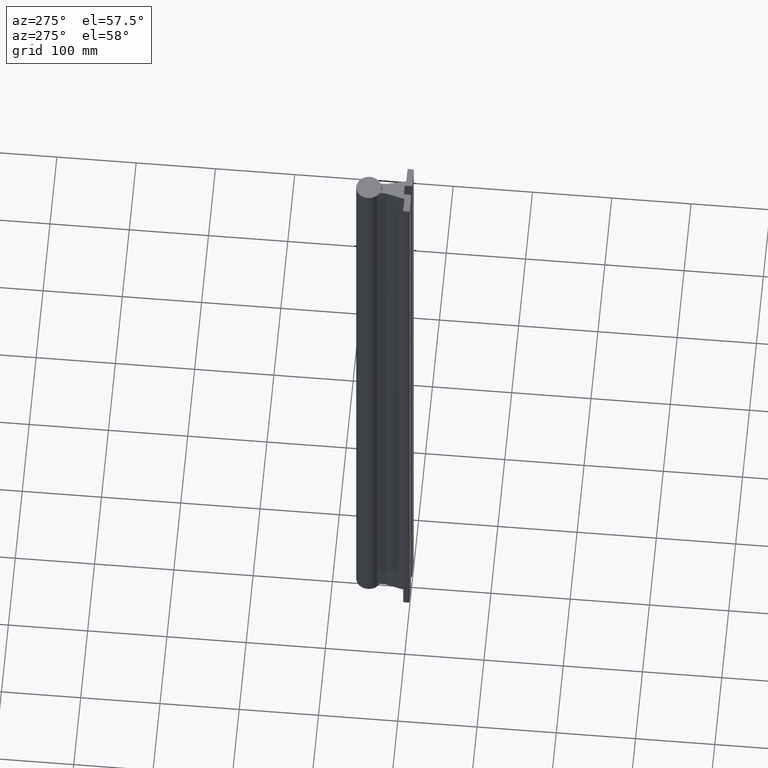
[diagram: clean part render]
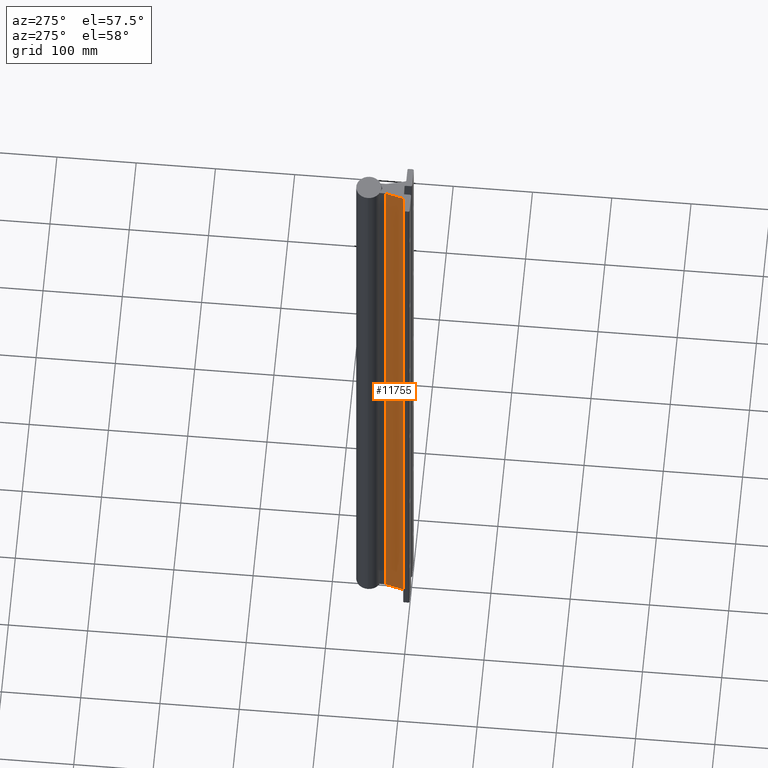
[diagram: same view with one face highlighted and labeled with its STEP entity id]
A machine part, auxiliary view. The second image highlights one B-rep face of the part: STEP entity #11755.
In plain terms, the highlighted planar face has unit normal (-0.9703, 0.2419, 0).
Its self-contained STEP definition (entity closure, byte-faithful):
#283 = DIRECTION ( 'NONE',  ( -0.2419218955296210949, -0.9702957262934609473, 0.000000000000000000 ) ) ;
#476 = DIRECTION ( 'NONE',  ( -0.9702957262934610583, 0.2419218955296211782, 0.000000000000000000 ) ) ;
#713 = CARTESIAN_POINT ( 'NONE',  ( -0.5080134247999988917, 0.3598798816000000622, 0.000000000000000000 ) ) ;
#893 = AXIS2_PLACEMENT_3D ( 'NONE', #13051, #476, #4469 ) ;
#1153 = CARTESIAN_POINT ( 'NONE',  ( -0.5080134247999988917, 0.3598798816000000622, -38.94793013549425353 ) ) ;
#1221 = CARTESIAN_POINT ( 'NONE',  ( -0.2831065172000003516, 1.261932218700000163, -38.94793013549425353 ) ) ;
#1410 = EDGE_CURVE ( 'NONE', #8459, #6741, #6466, .T. ) ;
#1475 = VECTOR ( 'NONE', #2084, 39.37007874015748143 ) ;
#2084 = DIRECTION ( 'NONE',  ( 0.000000000000000000, 0.000000000000000000, 1.000000000000000000 ) ) ;
#2647 = VECTOR ( 'NONE', #9349, 39.37007874015748854 ) ;
#3179 = EDGE_LOOP ( 'NONE', ( #7490, #4538, #6212, #4647 ) ) ;
#3968 = CARTESIAN_POINT ( 'NONE',  ( -0.2831065172000003516, 1.261932218700000163, -36.00000000000000000 ) ) ;
#4346 = CARTESIAN_POINT ( 'NONE',  ( -0.2831065172000003516, 1.261932218700000163, 0.000000000000000000 ) ) ;
#4406 = LINE ( 'NONE', #4346, #11483 ) ;
#4469 = DIRECTION ( 'NONE',  ( -0.2419218955296211504, -0.9702957262934609473, 0.000000000000000000 ) ) ;
#4483 = EDGE_CURVE ( 'NONE', #12801, #6741, #4406, .T. ) ;
#4538 = ORIENTED_EDGE ( 'NONE', *, *, #1410, .T. ) ;
#4647 = ORIENTED_EDGE ( 'NONE', *, *, #6354, .F. ) ;
#5591 = CARTESIAN_POINT ( 'NONE',  ( -0.2831065172000002961, 1.261932218700000163, 0.000000000000000000 ) ) ;
#6212 = ORIENTED_EDGE ( 'NONE', *, *, #4483, .F. ) ;
#6354 = EDGE_CURVE ( 'NONE', #7743, #12801, #7468, .T. ) ;
#6466 = LINE ( 'NONE', #1153, #1475 ) ;
#6741 = VERTEX_POINT ( 'NONE', #713 ) ;
#7468 = LINE ( 'NONE', #1221, #10123 ) ;
#7490 = ORIENTED_EDGE ( 'NONE', *, *, #9481, .F. ) ;
#7638 = CARTESIAN_POINT ( 'NONE',  ( -0.5080134247999987807, 0.3598798815999998957, -36.00000000000000000 ) ) ;
#7743 = VERTEX_POINT ( 'NONE', #12125 ) ;
#8459 = VERTEX_POINT ( 'NONE', #7638 ) ;
#9349 = DIRECTION ( 'NONE',  ( 0.2419218955296211504, 0.9702957262934609473, -0.000000000000000000 ) ) ;
#9481 = EDGE_CURVE ( 'NONE', #8459, #7743, #13379, .T. ) ;
#9697 = DIRECTION ( 'NONE',  ( 0.000000000000000000, 0.000000000000000000, 1.000000000000000000 ) ) ;
#9938 = PLANE ( 'NONE',  #893 ) ;
#10123 = VECTOR ( 'NONE', #9697, 39.37007874015748143 ) ;
#11483 = VECTOR ( 'NONE', #283, 39.37007874015748854 ) ;
#11755 = ADVANCED_FACE ( 'NONE', ( #12196 ), #9938, .T. ) ;
#12125 = CARTESIAN_POINT ( 'NONE',  ( -0.2831065172000002961, 1.261932218700000163, -36.00000000000000000 ) ) ;
#12196 = FACE_OUTER_BOUND ( 'NONE', #3179, .T. ) ;
#12801 = VERTEX_POINT ( 'NONE', #5591 ) ;
#13051 = CARTESIAN_POINT ( 'NONE',  ( -0.2831065172000003516, 1.261932218700000163, -38.94793013549425353 ) ) ;
#13379 = LINE ( 'NONE', #3968, #2647 ) ;